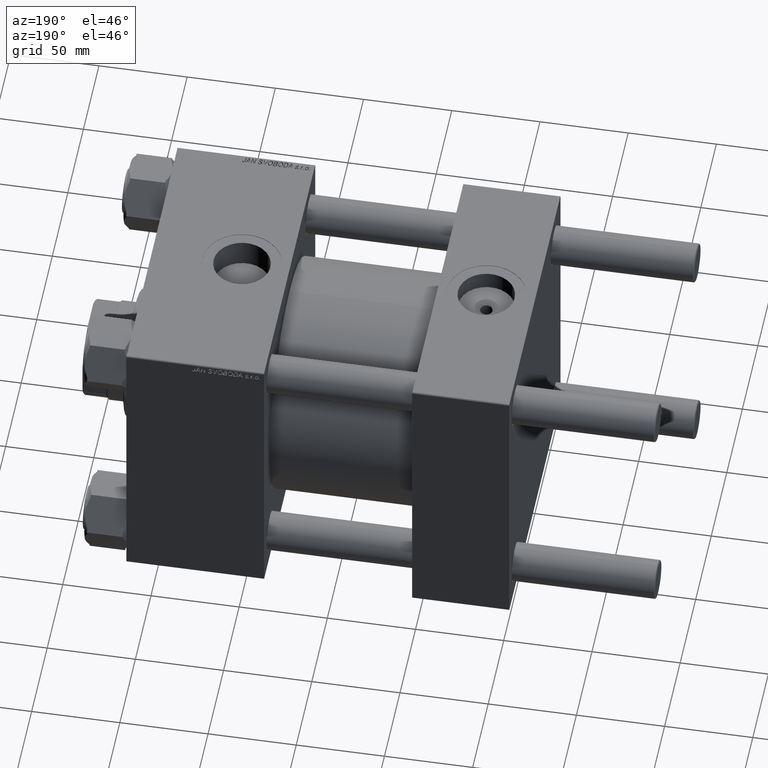
[diagram: clean part render]
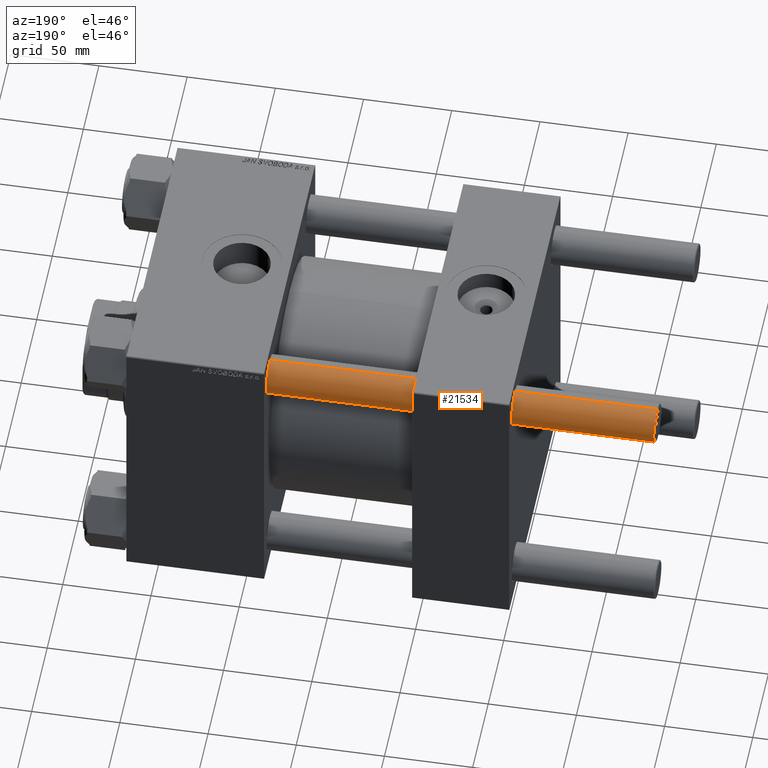
[diagram: same view with one face highlighted and labeled with its STEP entity id]
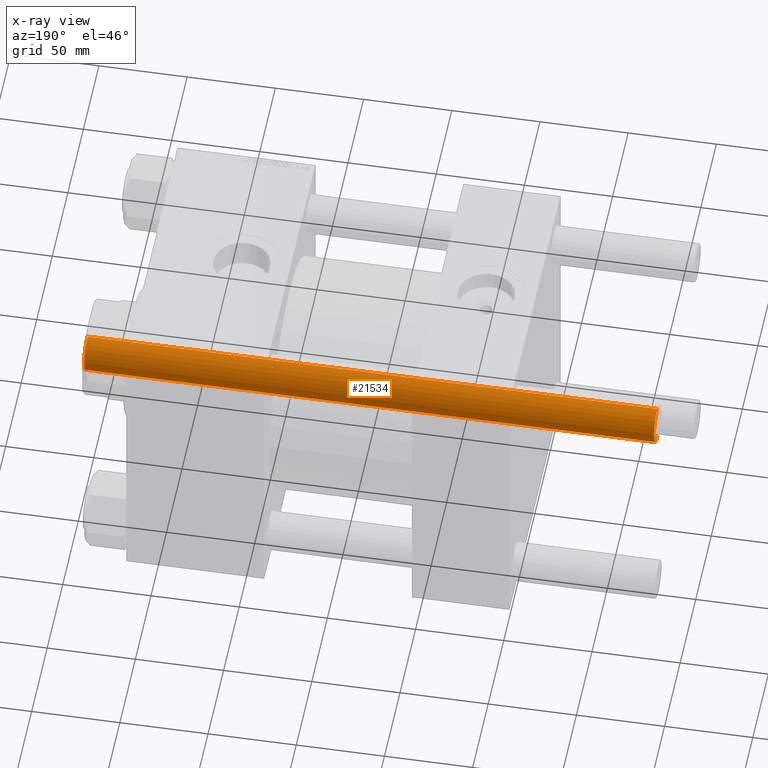
[diagram: x-ray of the same camera — body ghosted, the highlighted face saturated]
A machine part, auxiliary view. The second image highlights one B-rep face of the part: STEP entity #21534.
The next image is the same camera in x-ray: the body ghosted, the highlighted face saturated — about 0% of this face is hidden behind the body in this view.
In plain terms, the highlighted cylindrical surface (edge-blend (fillet) strip) has radius 11 mm, axis along (-1, -0, -0).
Its self-contained STEP definition (entity closure, byte-faithful):
#2412 = CARTESIAN_POINT ( 'NONE',  ( -11.00000000000000000, 0.000000000000000000, 0.5000000000000559552 ) ) ;
#3769 = DIRECTION ( 'NONE',  ( -0.000000000000000000, -0.000000000000000000, 1.000000000000000000 ) ) ;
#4552 = CARTESIAN_POINT ( 'NONE',  ( 0.000000000000000000, 0.000000000000000000, 324.0000000000000000 ) ) ;
#4948 = ORIENTED_EDGE ( 'NONE', *, *, #13656, .F. ) ;
#5972 = ORIENTED_EDGE ( 'NONE', *, *, #14337, .T. ) ;
#7559 = ORIENTED_EDGE ( 'NONE', *, *, #9499, .T. ) ;
#8014 = CARTESIAN_POINT ( 'NONE',  ( -11.00000000000000000, 0.000000000000000000, 324.0000000000000000 ) ) ;
#9499 = EDGE_CURVE ( 'NONE', #20466, #31673, #12219, .T. ) ;
#11483 = CARTESIAN_POINT ( 'NONE',  ( 0.000000000000000000, 0.000000000000000000, 323.5000000000000000 ) ) ;
#12219 = CIRCLE ( 'NONE', #39087, 11.00000000000000000 ) ;
#13103 = CARTESIAN_POINT ( 'NONE',  ( 11.00000000000000000, 1.347111479062088405E-15, 323.5000000000000000 ) ) ;
#13656 = EDGE_CURVE ( 'NONE', #20466, #45033, #39639, .T. ) ;
#13839 = CARTESIAN_POINT ( 'NONE',  ( -11.00000000000000000, 0.000000000000000000, 323.5000000000000000 ) ) ;
#13891 = CIRCLE ( 'NONE', #26923, 11.00000000000000000 ) ;
#14073 = EDGE_LOOP ( 'NONE', ( #7559, #37916, #5972, #4948 ) ) ;
#14337 = EDGE_CURVE ( 'NONE', #38376, #45033, #13891, .T. ) ;
#14952 = AXIS2_PLACEMENT_3D ( 'NONE', #4552, #42150, #18927 ) ;
#15612 = CARTESIAN_POINT ( 'NONE',  ( 11.00000000000000000, 1.347111479062088405E-15, 0.5000000000000559552 ) ) ;
#16773 = DIRECTION ( 'NONE',  ( -0.000000000000000000, -0.000000000000000000, -1.000000000000000000 ) ) ;
#18927 = DIRECTION ( 'NONE',  ( -1.000000000000000000, 0.000000000000000000, 0.000000000000000000 ) ) ;
#20466 = VERTEX_POINT ( 'NONE', #13839 ) ;
#21534 = ADVANCED_FACE ( 'NONE', ( #35677 ), #27765, .T. ) ;
#26923 = AXIS2_PLACEMENT_3D ( 'NONE', #45369, #3769, #38729 ) ;
#27765 = CYLINDRICAL_SURFACE ( 'NONE', #14952, 11.00000000000000000 ) ;
#31673 = VERTEX_POINT ( 'NONE', #13103 ) ;
#34190 = DIRECTION ( 'NONE',  ( 1.000000000000000000, 0.000000000000000000, 0.000000000000000000 ) ) ;
#35324 = DIRECTION ( 'NONE',  ( -0.000000000000000000, -0.000000000000000000, -1.000000000000000000 ) ) ;
#35677 = FACE_OUTER_BOUND ( 'NONE', #14073, .T. ) ;
#36158 = CARTESIAN_POINT ( 'NONE',  ( 11.00000000000000000, 1.347111479062088405E-15, 324.0000000000000000 ) ) ;
#37916 = ORIENTED_EDGE ( 'NONE', *, *, #47512, .T. ) ;
#38376 = VERTEX_POINT ( 'NONE', #15612 ) ;
#38729 = DIRECTION ( 'NONE',  ( 1.000000000000000000, 0.000000000000000000, 0.000000000000000000 ) ) ;
#39087 = AXIS2_PLACEMENT_3D ( 'NONE', #11483, #46922, #34190 ) ;
#39639 = LINE ( 'NONE', #8014, #48926 ) ;
#39987 = LINE ( 'NONE', #36158, #40226 ) ;
#40226 = VECTOR ( 'NONE', #16773, 1000.000000000000000 ) ;
#42150 = DIRECTION ( 'NONE',  ( -0.000000000000000000, -0.000000000000000000, -1.000000000000000000 ) ) ;
#45033 = VERTEX_POINT ( 'NONE', #2412 ) ;
#45369 = CARTESIAN_POINT ( 'NONE',  ( 0.000000000000000000, 0.000000000000000000, 0.5000000000000559552 ) ) ;
#46922 = DIRECTION ( 'NONE',  ( 0.000000000000000000, 0.000000000000000000, -1.000000000000000000 ) ) ;
#47512 = EDGE_CURVE ( 'NONE', #31673, #38376, #39987, .T. ) ;
#48926 = VECTOR ( 'NONE', #35324, 1000.000000000000000 ) ;